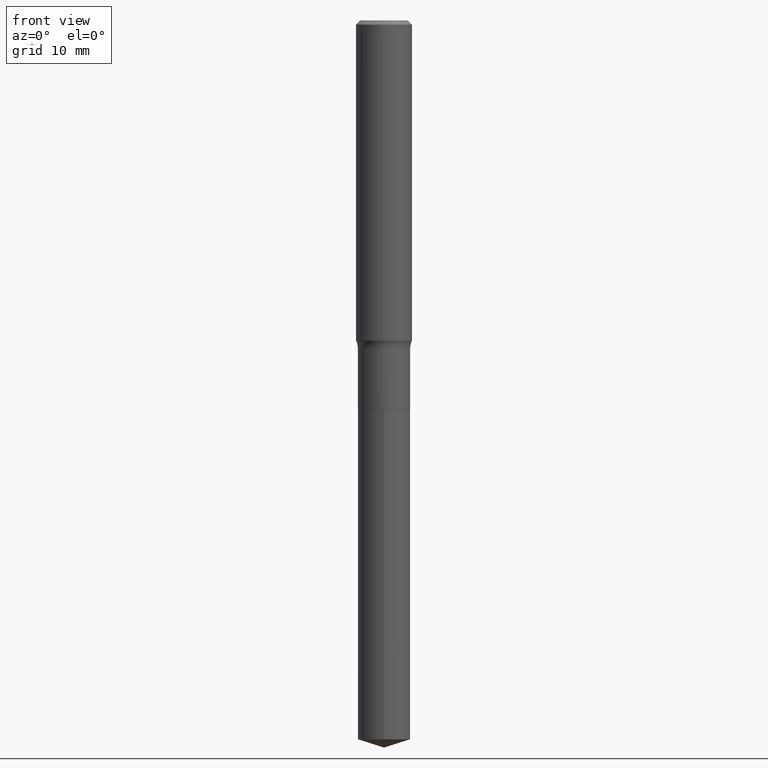
[diagram: clean part render]
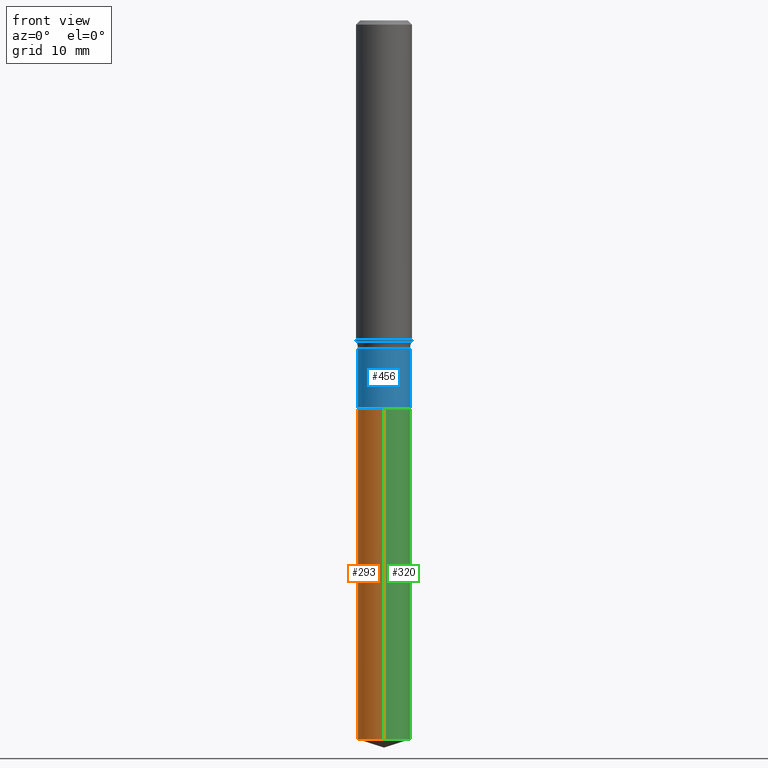
[diagram: same view with three faces highlighted in distinct colors, each labeled with its STEP entity id]
A machine part, front view with three faces highlighted in distinct colors.
Their STEP definitions:

[orange] entity #293 — the highlighted cylindrical surface (edge-blend (fillet) strip) has radius 2.9718 mm, axis along (-0, 0, 1).
#8 = DIRECTION ( 'NONE',  ( -6.982962677686265922E-15, -1.000000000000000000, 2.334912815097660779E-15 ) ) ;
#31 = VERTEX_POINT ( 'NONE', #457 ) ;
#33 = VERTEX_POINT ( 'NONE', #125 ) ;
#55 = CARTESIAN_POINT ( 'NONE',  ( 4.240442909925027244E-29, -6.054228641554014979E-15, -1.734000000000000208 ) ) ;
#59 = DIRECTION ( 'NONE',  ( -6.982962677686265922E-15, -1.000000000000000000, 2.334912815097660779E-15 ) ) ;
#63 = CARTESIAN_POINT ( 'NONE',  ( 8.313350008393960531E-16, 0.1169999999999939422, -1.734000000000000430 ) ) ;
#66 = CARTESIAN_POINT ( 'NONE',  ( 8.313350008393596669E-16, 0.1169999999999939422, -1.734000000000000430 ) ) ;
#68 = ORIENTED_EDGE ( 'NONE', *, *, #263, .F. ) ;
#84 = AXIS2_PLACEMENT_3D ( 'NONE', #55, #441, #59 ) ;
#93 = VECTOR ( 'NONE', #323, 39.37007874015748143 ) ;
#99 = CIRCLE ( 'NONE', #292, 0.1170000000000000068 ) ;
#103 = CYLINDRICAL_SURFACE ( 'NONE', #192, 0.1170000000000000068 ) ;
#125 = CARTESIAN_POINT ( 'NONE',  ( 8.313350008393958559E-16, 0.1169999999999888074, -3.213110041701158881 ) ) ;
#131 = CARTESIAN_POINT ( 'NONE',  ( -8.170066332892507526E-16, -0.1170000000000060714, -1.733999999999999764 ) ) ;
#135 = DIRECTION ( 'NONE',  ( -6.982962677686265922E-15, -1.000000000000000000, 4.669825630195321559E-15 ) ) ;
#138 = EDGE_CURVE ( 'NONE', #31, #395, #474, .T. ) ;
#158 = DIRECTION ( 'NONE',  ( -2.445481241211872251E-29, 3.491463531177101851E-15, 1.000000000000000000 ) ) ;
#162 = ORIENTED_EDGE ( 'NONE', *, *, #243, .F. ) ;
#176 = CARTESIAN_POINT ( 'NONE',  ( 7.857578770593320550E-29, -1.121848741075145102E-14, -3.213110041701158437 ) ) ;
#189 = ORIENTED_EDGE ( 'NONE', *, *, #310, .T. ) ;
#192 = AXIS2_PLACEMENT_3D ( 'NONE', #286, #463, #8 ) ;
#215 = CIRCLE ( 'NONE', #84, 0.1170000000000000068 ) ;
#243 = EDGE_CURVE ( 'NONE', #33, #279, #405, .T. ) ;
#245 = VECTOR ( 'NONE', #158, 39.37007874015748143 ) ;
#263 = EDGE_CURVE ( 'NONE', #279, #395, #215, .T. ) ;
#275 = ORIENTED_EDGE ( 'NONE', *, *, #138, .T. ) ;
#279 = VERTEX_POINT ( 'NONE', #63 ) ;
#286 = CARTESIAN_POINT ( 'NONE',  ( 4.240442909925027244E-29, -6.054228641554014979E-15, -1.734000000000000208 ) ) ;
#292 = AXIS2_PLACEMENT_3D ( 'NONE', #176, #313, #135 ) ;
#293 = ADVANCED_FACE ( 'NONE', ( #350 ), #103, .T. ) ;
#310 = EDGE_CURVE ( 'NONE', #33, #31, #99, .T. ) ;
#313 = DIRECTION ( 'NONE',  ( -2.445481241211872532E-29, 3.491463531177101851E-15, 1.000000000000000000 ) ) ;
#323 = DIRECTION ( 'NONE',  ( -2.445481241211872251E-29, 3.491463531177101851E-15, 1.000000000000000000 ) ) ;
#350 = FACE_OUTER_BOUND ( 'NONE', #458, .T. ) ;
#395 = VERTEX_POINT ( 'NONE', #131 ) ;
#405 = LINE ( 'NONE', #66, #93 ) ;
#441 = DIRECTION ( 'NONE',  ( -2.445481241211872532E-29, 3.491463531177101851E-15, 1.000000000000000000 ) ) ;
#457 = CARTESIAN_POINT ( 'NONE',  ( -8.170066332892147608E-16, -0.1170000000000112617, -3.213110041701157993 ) ) ;
#458 = EDGE_LOOP ( 'NONE', ( #162, #189, #275, #68 ) ) ;
#463 = DIRECTION ( 'NONE',  ( -2.445481241211872532E-29, 3.491463531177101851E-15, 1.000000000000000000 ) ) ;
#474 = LINE ( 'NONE', #486, #245 ) ;
#486 = CARTESIAN_POINT ( 'NONE',  ( -8.170066332892507526E-16, -0.1170000000000060714, -1.733999999999999764 ) ) ;

[blue] entity #456 — the highlighted cylindrical surface (edge-blend (fillet) strip) has radius 2.9718 mm, axis along (-0, 0, 1).
#5 = CIRCLE ( 'NONE', #277, 0.1170000000000000068 ) ;
#21 = ORIENTED_EDGE ( 'NONE', *, *, #335, .T. ) ;
#23 = CARTESIAN_POINT ( 'NONE',  ( 4.239220175521934443E-29, -6.052482900884593475E-15, -1.733500000000000263 ) ) ;
#46 = VERTEX_POINT ( 'NONE', #425 ) ;
#47 = DIRECTION ( 'NONE',  ( -2.445468806185136597E-29, 3.491481338843145583E-15, 1.000000000000000000 ) ) ;
#53 = CARTESIAN_POINT ( 'NONE',  ( 0.1170000000000000068, -6.869489534173886334E-15, -1.733500000000000263 ) ) ;
#54 = LINE ( 'NONE', #445, #187 ) ;
#60 = AXIS2_PLACEMENT_3D ( 'NONE', #311, #47, #172 ) ;
#109 = DIRECTION ( 'NONE',  ( -2.445468806185136877E-29, 3.491481338843145188E-15, 1.000000000000000000 ) ) ;
#117 = VERTEX_POINT ( 'NONE', #254 ) ;
#129 = EDGE_LOOP ( 'NONE', ( #238, #21, #239, #419 ) ) ;
#136 = DIRECTION ( 'NONE',  ( 1.000000000000000000, -6.982962677686267499E-15, 0.000000000000000000 ) ) ;
#139 = DIRECTION ( 'NONE',  ( -2.445468806185136877E-29, 3.491481338843145188E-15, 1.000000000000000000 ) ) ;
#172 = DIRECTION ( 'NONE',  ( 1.000000000000000000, -6.982962677686266711E-15, 4.876176775795935232E-29 ) ) ;
#175 = DIRECTION ( 'NONE',  ( -2.445468806185136597E-29, 3.491481338843145583E-15, 1.000000000000000000 ) ) ;
#187 = VECTOR ( 'NONE', #109, 39.37007874015748143 ) ;
#191 = VERTEX_POINT ( 'NONE', #53 ) ;
#216 = AXIS2_PLACEMENT_3D ( 'NONE', #467, #175, #136 ) ;
#219 = FACE_OUTER_BOUND ( 'NONE', #129, .T. ) ;
#224 = CARTESIAN_POINT ( 'NONE',  ( -0.1169999999999999790, -4.752241956238641517E-15, -1.464900000000000091 ) ) ;
#230 = CIRCLE ( 'NONE', #216, 0.1169999999999999790 ) ;
#238 = ORIENTED_EDGE ( 'NONE', *, *, #342, .F. ) ;
#239 = ORIENTED_EDGE ( 'NONE', *, *, #269, .T. ) ;
#254 = CARTESIAN_POINT ( 'NONE',  ( -0.1170000000000000207, -4.752241956238641517E-15, -1.733500000000000263 ) ) ;
#264 = DIRECTION ( 'NONE',  ( -2.445468806185136597E-29, 3.491481338843145583E-15, 1.000000000000000000 ) ) ;
#269 = EDGE_CURVE ( 'NONE', #191, #46, #358, .T. ) ;
#277 = AXIS2_PLACEMENT_3D ( 'NONE', #23, #264, #410 ) ;
#305 = VERTEX_POINT ( 'NONE', #224 ) ;
#311 = CARTESIAN_POINT ( 'NONE',  ( 0.000000000000000000, 0.000000000000000000, 0.000000000000000000 ) ) ;
#335 = EDGE_CURVE ( 'NONE', #117, #191, #5, .T. ) ;
#342 = EDGE_CURVE ( 'NONE', #117, #305, #54, .T. ) ;
#358 = LINE ( 'NONE', #471, #481 ) ;
#360 = CYLINDRICAL_SURFACE ( 'NONE', #60, 0.1169999999999999929 ) ;
#381 = EDGE_CURVE ( 'NONE', #305, #46, #230, .T. ) ;
#410 = DIRECTION ( 'NONE',  ( 1.000000000000000000, -6.982962677686265922E-15, 0.000000000000000000 ) ) ;
#419 = ORIENTED_EDGE ( 'NONE', *, *, #381, .F. ) ;
#425 = CARTESIAN_POINT ( 'NONE',  ( 0.1169999999999999790, -5.931677646560616751E-15, -1.464900000000000091 ) ) ;
#445 = CARTESIAN_POINT ( 'NONE',  ( -0.1169999999999999929, 8.313350008393171670E-16, -5.755154055598239585E-30 ) ) ;
#456 = ADVANCED_FACE ( 'NONE', ( #219 ), #360, .T. ) ;
#467 = CARTESIAN_POINT ( 'NONE',  ( 3.582367254180606823E-29, -5.114671013271323893E-15, -1.464900000000000091 ) ) ;
#471 = CARTESIAN_POINT ( 'NONE',  ( 0.1169999999999999929, -8.170066332892931539E-16, 5.705126827681244093E-30 ) ) ;
#481 = VECTOR ( 'NONE', #139, 39.37007874015748143 ) ;

[green] entity #320 — the highlighted cylindrical surface (edge-blend (fillet) strip) has radius 2.9718 mm, axis along (-0, 0, 1).
#24 = EDGE_CURVE ( 'NONE', #395, #279, #133, .T. ) ;
#31 = VERTEX_POINT ( 'NONE', #457 ) ;
#33 = VERTEX_POINT ( 'NONE', #125 ) ;
#44 = ORIENTED_EDGE ( 'NONE', *, *, #138, .F. ) ;
#56 = CARTESIAN_POINT ( 'NONE',  ( 4.240442909925027244E-29, -6.054228641554014979E-15, -1.734000000000000208 ) ) ;
#61 = AXIS2_PLACEMENT_3D ( 'NONE', #180, #98, #354 ) ;
#63 = CARTESIAN_POINT ( 'NONE',  ( 8.313350008393960531E-16, 0.1169999999999939422, -1.734000000000000430 ) ) ;
#66 = CARTESIAN_POINT ( 'NONE',  ( 8.313350008393596669E-16, 0.1169999999999939422, -1.734000000000000430 ) ) ;
#72 = DIRECTION ( 'NONE',  ( -2.445481241211872532E-29, 3.491463531177101851E-15, 1.000000000000000000 ) ) ;
#75 = AXIS2_PLACEMENT_3D ( 'NONE', #387, #86, #333 ) ;
#76 = CIRCLE ( 'NONE', #61, 0.1170000000000000068 ) ;
#86 = DIRECTION ( 'NONE',  ( -2.445481241211872532E-29, 3.491463531177101851E-15, 1.000000000000000000 ) ) ;
#93 = VECTOR ( 'NONE', #323, 39.37007874015748143 ) ;
#95 = FACE_OUTER_BOUND ( 'NONE', #273, .T. ) ;
#98 = DIRECTION ( 'NONE',  ( -2.445481241211872532E-29, 3.491463531177101851E-15, 1.000000000000000000 ) ) ;
#105 = DIRECTION ( 'NONE',  ( -6.982962677686265922E-15, -1.000000000000000000, 2.334912815097660779E-15 ) ) ;
#124 = ORIENTED_EDGE ( 'NONE', *, *, #397, .T. ) ;
#125 = CARTESIAN_POINT ( 'NONE',  ( 8.313350008393958559E-16, 0.1169999999999888074, -3.213110041701158881 ) ) ;
#131 = CARTESIAN_POINT ( 'NONE',  ( -8.170066332892507526E-16, -0.1170000000000060714, -1.733999999999999764 ) ) ;
#133 = CIRCLE ( 'NONE', #75, 0.1170000000000000068 ) ;
#138 = EDGE_CURVE ( 'NONE', #31, #395, #474, .T. ) ;
#158 = DIRECTION ( 'NONE',  ( -2.445481241211872251E-29, 3.491463531177101851E-15, 1.000000000000000000 ) ) ;
#180 = CARTESIAN_POINT ( 'NONE',  ( 7.857578770593320550E-29, -1.121848741075145102E-14, -3.213110041701158437 ) ) ;
#243 = EDGE_CURVE ( 'NONE', #33, #279, #405, .T. ) ;
#245 = VECTOR ( 'NONE', #158, 39.37007874015748143 ) ;
#273 = EDGE_LOOP ( 'NONE', ( #124, #411, #278, #44 ) ) ;
#278 = ORIENTED_EDGE ( 'NONE', *, *, #24, .F. ) ;
#279 = VERTEX_POINT ( 'NONE', #63 ) ;
#320 = ADVANCED_FACE ( 'NONE', ( #95 ), #394, .T. ) ;
#323 = DIRECTION ( 'NONE',  ( -2.445481241211872251E-29, 3.491463531177101851E-15, 1.000000000000000000 ) ) ;
#333 = DIRECTION ( 'NONE',  ( -6.982962677686265922E-15, -1.000000000000000000, 2.334912815097660779E-15 ) ) ;
#354 = DIRECTION ( 'NONE',  ( -6.982962677686265922E-15, -1.000000000000000000, 4.669825630195321559E-15 ) ) ;
#387 = CARTESIAN_POINT ( 'NONE',  ( 4.240442909925027244E-29, -6.054228641554014979E-15, -1.734000000000000208 ) ) ;
#394 = CYLINDRICAL_SURFACE ( 'NONE', #416, 0.1170000000000000068 ) ;
#395 = VERTEX_POINT ( 'NONE', #131 ) ;
#397 = EDGE_CURVE ( 'NONE', #31, #33, #76, .T. ) ;
#405 = LINE ( 'NONE', #66, #93 ) ;
#411 = ORIENTED_EDGE ( 'NONE', *, *, #243, .T. ) ;
#416 = AXIS2_PLACEMENT_3D ( 'NONE', #56, #72, #105 ) ;
#457 = CARTESIAN_POINT ( 'NONE',  ( -8.170066332892147608E-16, -0.1170000000000112617, -3.213110041701157993 ) ) ;
#474 = LINE ( 'NONE', #486, #245 ) ;
#486 = CARTESIAN_POINT ( 'NONE',  ( -8.170066332892507526E-16, -0.1170000000000060714, -1.733999999999999764 ) ) ;